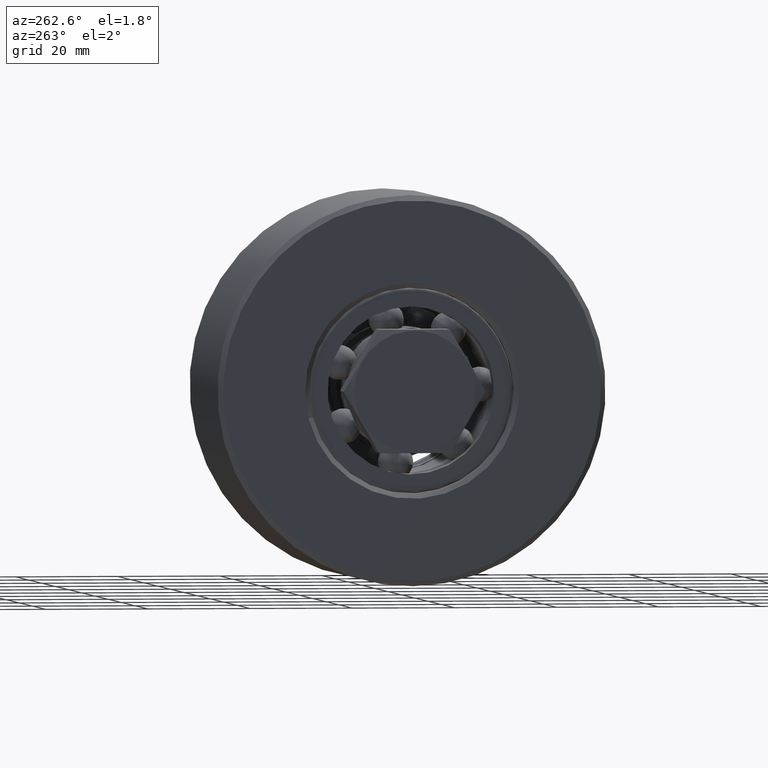
[diagram: clean part render]
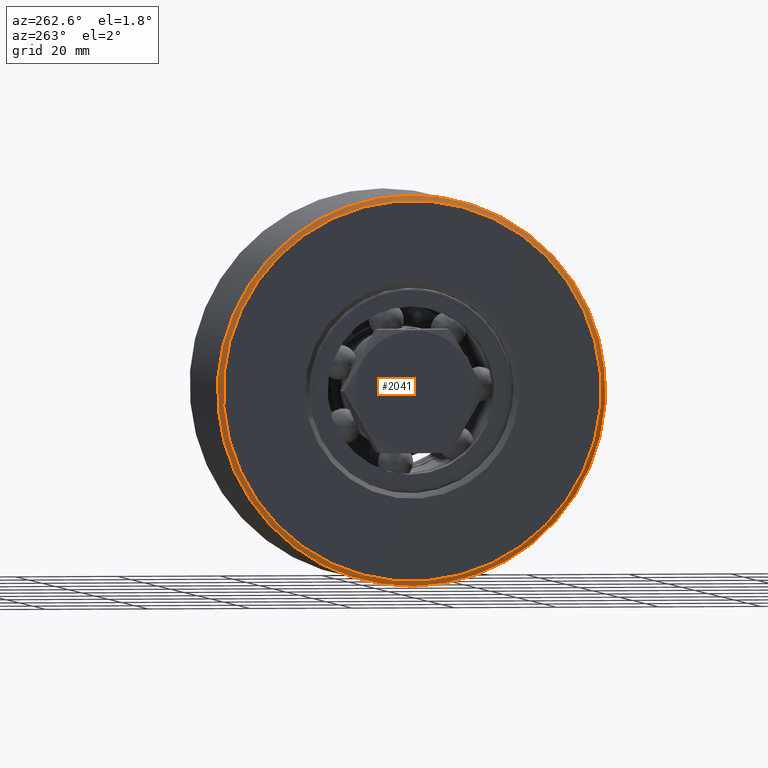
[diagram: same view with one face highlighted and labeled with its STEP entity id]
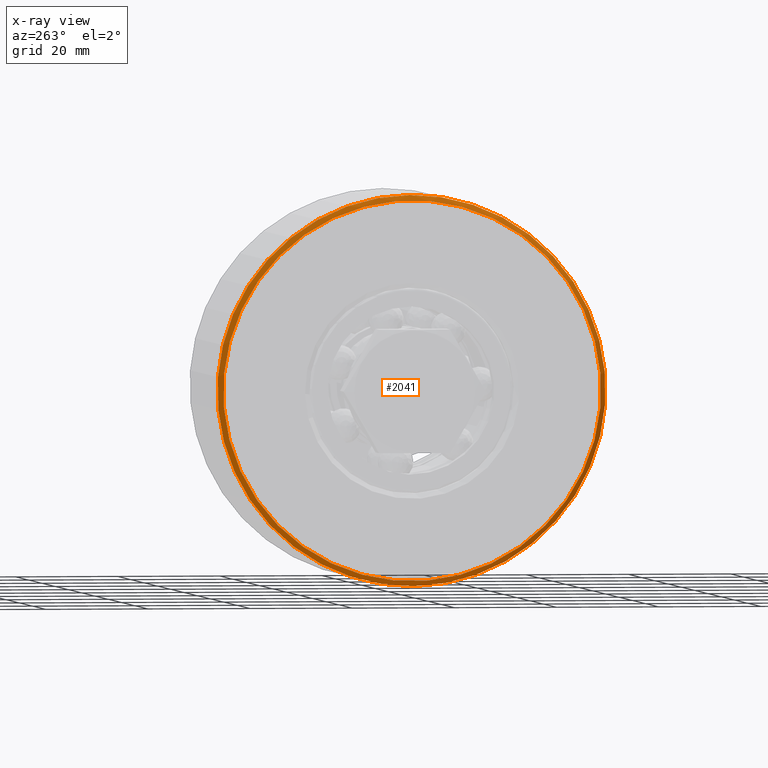
[diagram: x-ray of the same camera — body ghosted, the highlighted face saturated]
A machine part, auxiliary view. The second image highlights one B-rep face of the part: STEP entity #2041.
The next image is the same camera in x-ray: the body ghosted, the highlighted face saturated — about 0% of this face is hidden behind the body in this view.
In plain terms, the highlighted conical surface has half-angle 45 deg.
Its self-contained STEP definition (entity closure, byte-faithful):
#349=FACE_OUTER_BOUND('',#474,.T.);
#474=EDGE_LOOP('',(#1616,#1617,#1618,#1619,#1620));
#607=LINE('',#3479,#681);
#681=VECTOR('',#2816,37.5);
#752=CIRCLE('',#2368,37.);
#759=CIRCLE('',#2380,38.);
#760=CIRCLE('',#2381,38.);
#919=VERTEX_POINT('',#3453);
#926=VERTEX_POINT('',#3475);
#927=VERTEX_POINT('',#3476);
#1171=EDGE_CURVE('',#919,#919,#752,.T.);
#1181=EDGE_CURVE('',#926,#927,#759,.T.);
#1182=EDGE_CURVE('',#927,#926,#760,.T.);
#1183=EDGE_CURVE('',#926,#919,#607,.T.);
#1616=ORIENTED_EDGE('',*,*,#1181,.T.);
#1617=ORIENTED_EDGE('',*,*,#1182,.T.);
#1618=ORIENTED_EDGE('',*,*,#1183,.T.);
#1619=ORIENTED_EDGE('',*,*,#1171,.T.);
#1620=ORIENTED_EDGE('',*,*,#1183,.F.);
#1978=CONICAL_SURFACE('',#2379,37.5,0.785398163397448);
#2041=ADVANCED_FACE('',(#349),#1978,.T.);
#2368=AXIS2_PLACEMENT_3D('',#3454,#2785,#2786);
#2379=AXIS2_PLACEMENT_3D('',#3474,#2810,#2811);
#2380=AXIS2_PLACEMENT_3D('',#3477,#2812,#2813);
#2381=AXIS2_PLACEMENT_3D('',#3478,#2814,#2815);
#2785=DIRECTION('center_axis',(1.,0.,0.));
#2786=DIRECTION('ref_axis',(0.,-1.,0.));
#2810=DIRECTION('center_axis',(1.,0.,0.));
#2811=DIRECTION('ref_axis',(0.,-1.,0.));
#2812=DIRECTION('center_axis',(-1.,0.,0.));
#2813=DIRECTION('ref_axis',(0.,-1.,0.));
#2814=DIRECTION('center_axis',(-1.,0.,0.));
#2815=DIRECTION('ref_axis',(0.,-1.,0.));
#2816=DIRECTION('',(-0.707106781186547,-0.707106781186547,-8.65956056235493E-17));
#3453=CARTESIAN_POINT('',(-22.,37.,4.53119315684521E-15));
#3454=CARTESIAN_POINT('Origin',(-22.,0.,0.));
#3474=CARTESIAN_POINT('Origin',(-21.5,0.,0.));
#3475=CARTESIAN_POINT('',(-21.,38.,-4.65365783675994E-15));
#3476=CARTESIAN_POINT('',(-21.,-38.,-4.65365783675994E-15));
#3477=CARTESIAN_POINT('Origin',(-21.,0.,0.));
#3478=CARTESIAN_POINT('Origin',(-21.,0.,0.));
#3479=CARTESIAN_POINT('',(-21.5,37.5,4.59242549680258E-15));